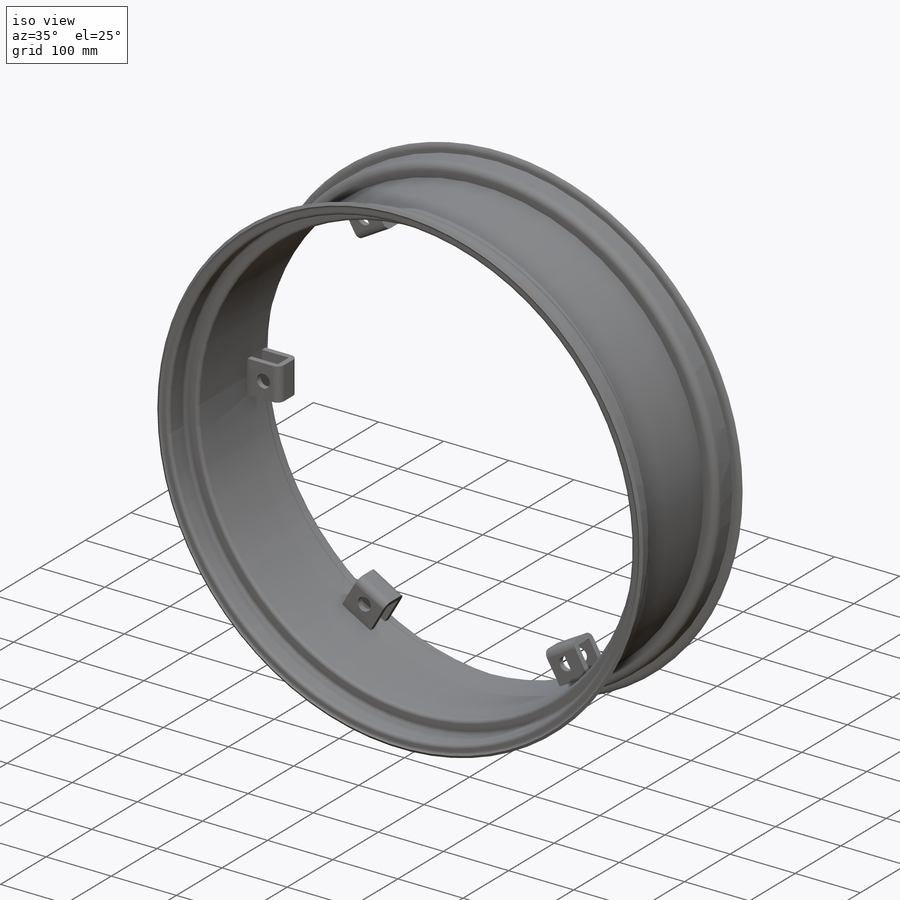
[diagram: iso view]
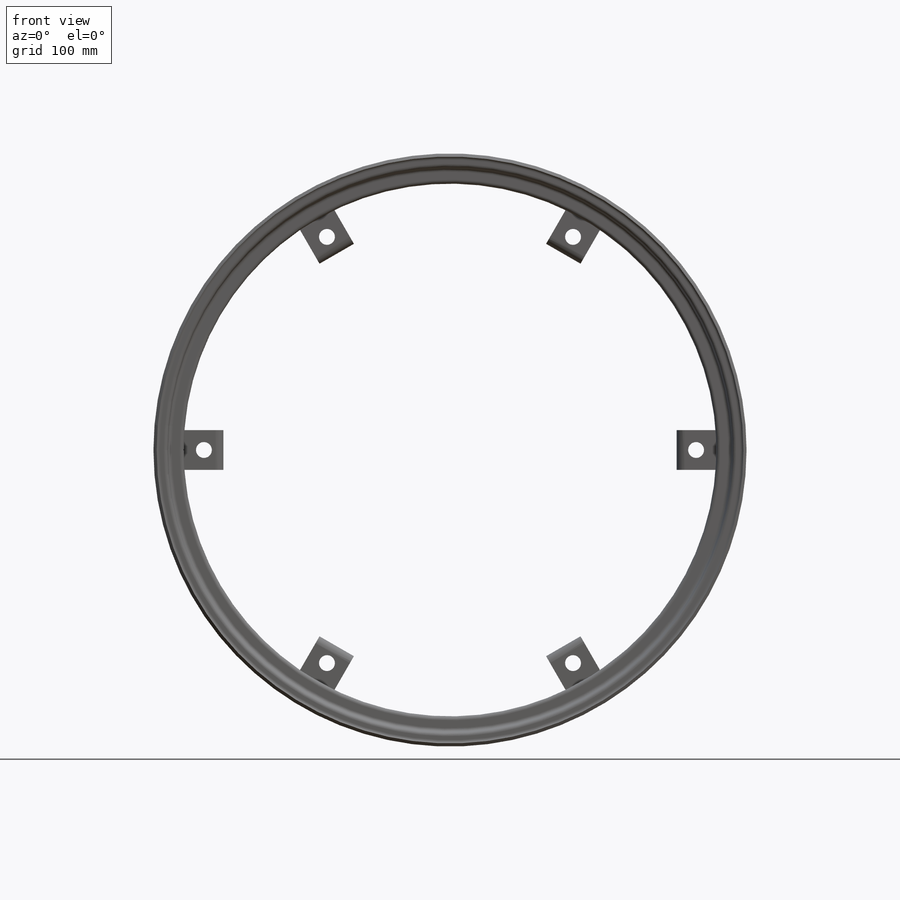
[diagram: front view]
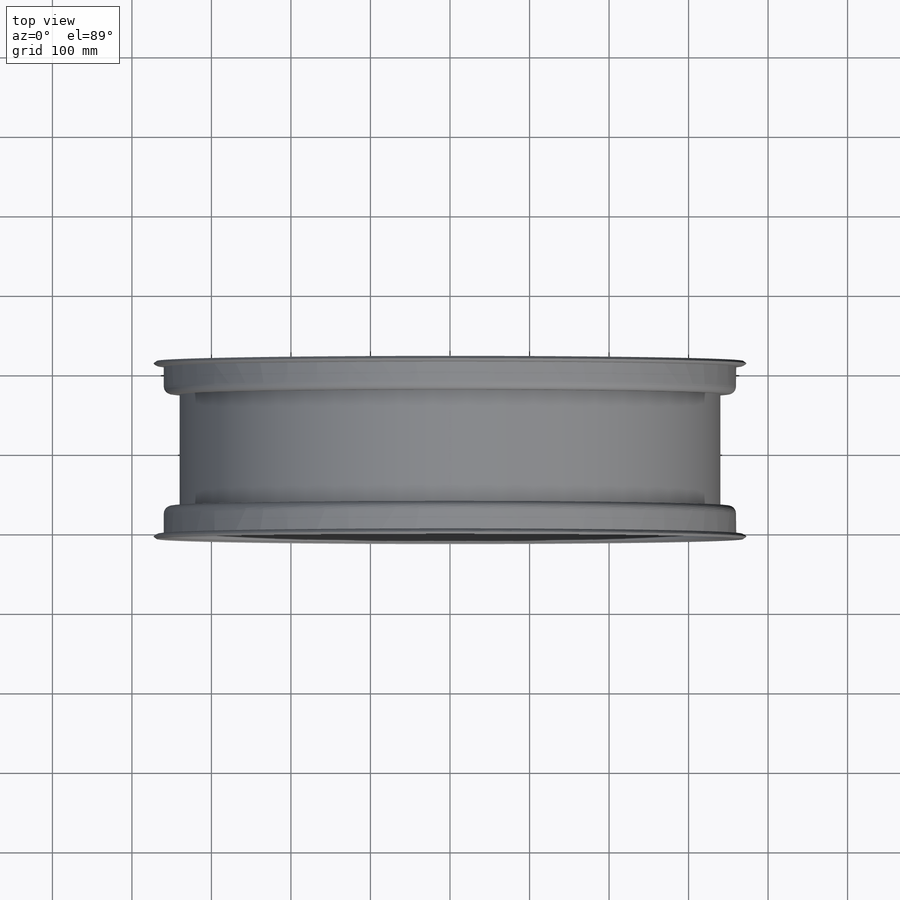
[diagram: top view]
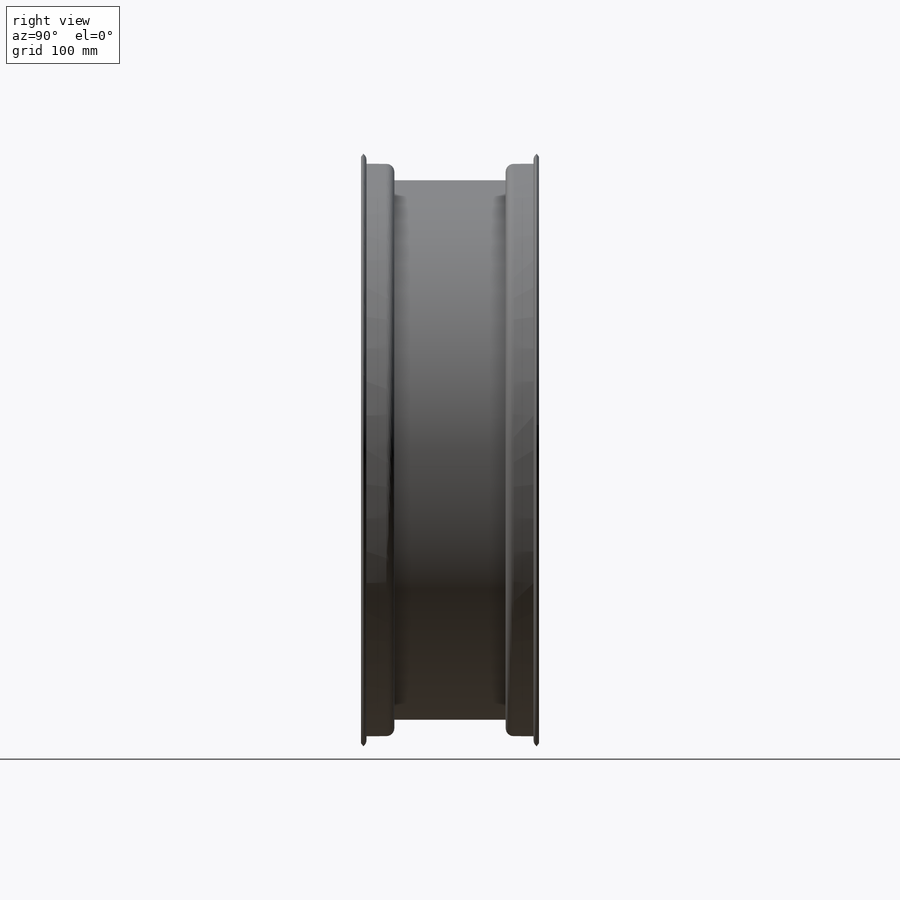
[diagram: right view]
SOLIDWORKS PART (.sldprt)
format: sldprt  version: not decoded by parser v0  size: 421,376 bytes
history: native  units: mm
features: sketch x3, material x1, revolve x1, extrude x1, cut_extrude x1, pattern_circular x1 (+13 scaffold rows collapsed)
feature tree (21):
  scaffold x13  (default folders/planes/origin — collapsed)
  material  "Material <not specified>"
  sketch  "Sketch1"  dims[c1.D6=10.0mm c1.D13=5.0mm c1.D1=373.0mm c1.D2=4.0mm c1.D3=3.0mm c1.D4=3.0mm c1.D5=8.0mm c2.D6=7.0mm c2.D7=13.0mm c2.D8=25.0mm c2.D9=10.0mm c2.D10=20.0mm c2.D11=140.0mm c3.D6=5.0mm c3.D12=5.0mm c3.D4=5.0mm c4.D6=5.0mm]
  revolve  "Revolve1"  Angle=360deg
  sketch  "Sketch2"  dims[c1.D1=2.0mm c1.D2=10.0mm c1.D3=50.0mm c1.D4=8.0mm c1.D5=8.0mm c1.D6=8.0mm c1.D7=40.0mm c1.D8=47.0mm c1.D9=330.0mm c1.D12=55.0mm c2.D8=37.0mm c2.D10=20.0mm c2.D9=293.0mm c2.D1=0.0mm c3.D10=0.0mm c3.D11=0.0mm]
  extrude  "Boss-Extrude1"  Depth=50mm
  sketch  "Sketch3"  dims[c1.D1=20.0mm c1.D2=20.0mm c1.D3=20.0mm c2.D2=~309.500093mm c2.D3=~24.500093mm c3.D2=~24.500093mm]
  cut_extrude  "Cut-Extrude1"  [1 undecoded]
  pattern_circular  "CirPattern1"  Count=6  [1 undecoded]
decode coverage: 6 of 7 modeling features carry decoded parameters
note: ~ marks probable driven/reference dimensions
note: 2 parameter values undecoded
note: suppression state not decoded; provenance and decode notes live in map.json
